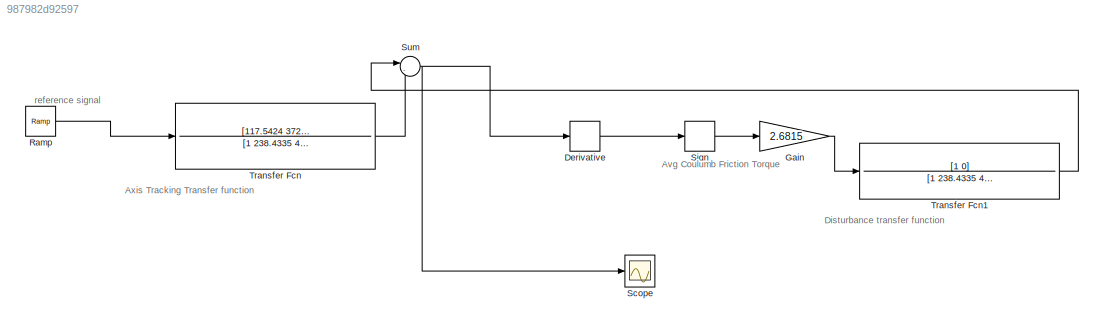
MODEL slx_987982d92597
KIND model
CONFIG AbsTol = auto
CONFIG EnableMultiTasking = off
CONFIG FixedStep = auto
CONFIG MaxStep = auto
CONFIG MinStep = auto
CONFIG RelTol = 1e-3
CONFIG SampleTimeConstraint = Unconstrained
CONFIG SolverName = VariableStepAuto
CONFIG StartTime = 0.0
CONFIG StopTime = 10.0
BLOCK [Derivative] Derivative
BLOCK [Gain] Gain
  Gain = 2.6815
BLOCK [Reference] Ramp  REF=simulink/Sources/Ramp
  Ports = [0, 1]
  SourceBlock = simulink/Sources/Ramp
  SourceProductBaseCode = SL
  SourceType = Ramp
BLOCK [Scope] Scope
  Floating = off
  NumInputPorts = 1
  Ports = [1]
  ScopeSpecificationString = Simulink.scopes.TimeScopeBlockCfg('CurrentConfiguration', extmgr.ConfigurationSet(extmgr.Configuration('Core','General UI',true),extmgr.Configuration('Core','Source UI',true),extmgr.Configuration('Sources','WiredSimulink',true),extmgr.Configuration('Visuals','Time Domain',true,'SerializedDisplays',{struct('MinYLimReal','-1.24838','MaxYLimReal','11.23544','YLabelReal','','MinYLimMag','0.00000','Max...<+1360ch>
BLOCK [Signum] Sign
BLOCK [Sum] Sum
  Inputs = |-+
  Ports = [2, 1]
BLOCK [TransferFcn] Transfer Fcn
  Denominator = [1 238.4335 48421.5859 2487140.30]
  Numerator = [117.5424 37258.9796 2487140.30]
BLOCK [TransferFcn] Transfer Fcn1
  Denominator = [1 238.4335 48421.5859 2487140.30]
  Numerator = [1 0]
ANNOTATION (root): Avg Coulumb Friction Torque
ANNOTATION (root): Axis Tracking Transfer function
ANNOTATION (root): Disturbance transfer function
ANNOTATION (root): reference signal
LINE Derivative:1 -> Sign:1
LINE Gain:1 -> Transfer Fcn1:1
LINE Ramp:1 -> Transfer Fcn:1
LINE Sign:1 -> Gain:1
NET Sum:1 -> Derivative:1, Scope:1
LINE Transfer Fcn1:1 -> Sum:1
LINE Transfer Fcn:1 -> Sum:2
note: NET lines group one-source signal fan-out (src -> all destinations, sorted); 1:1 wires keep LINE
